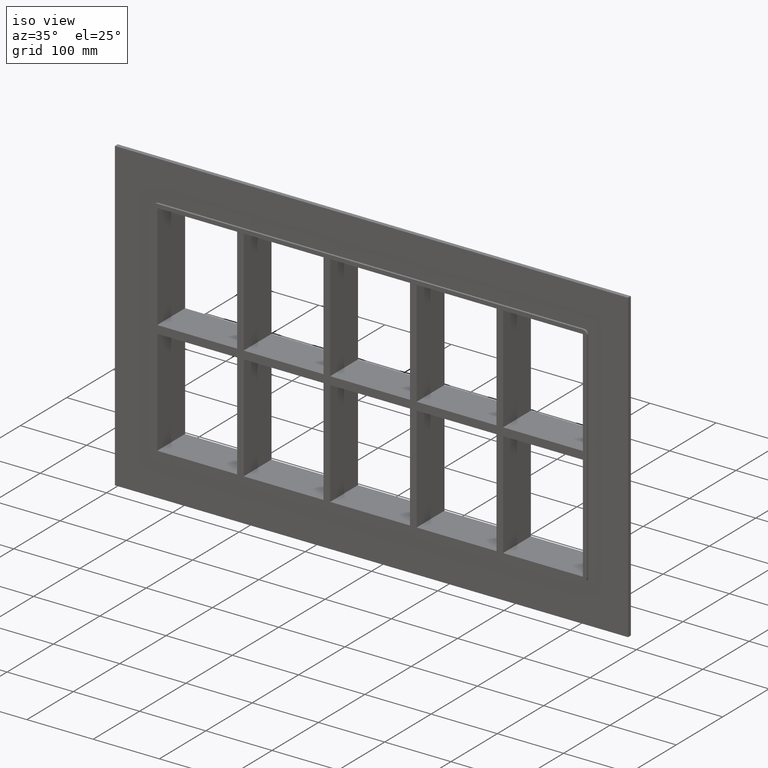
[diagram: clean part render]
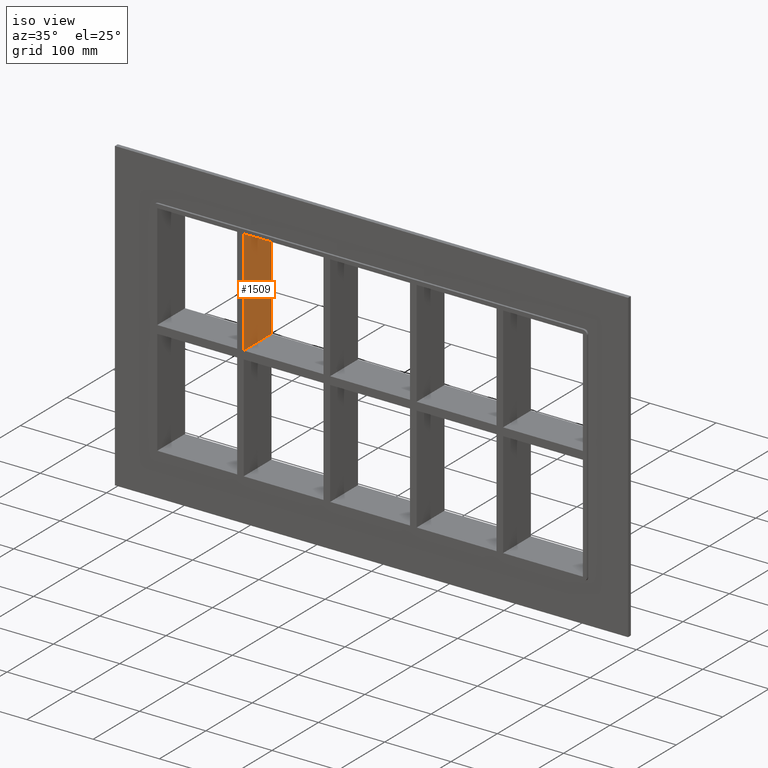
[diagram: same view with one face highlighted and labeled with its STEP entity id]
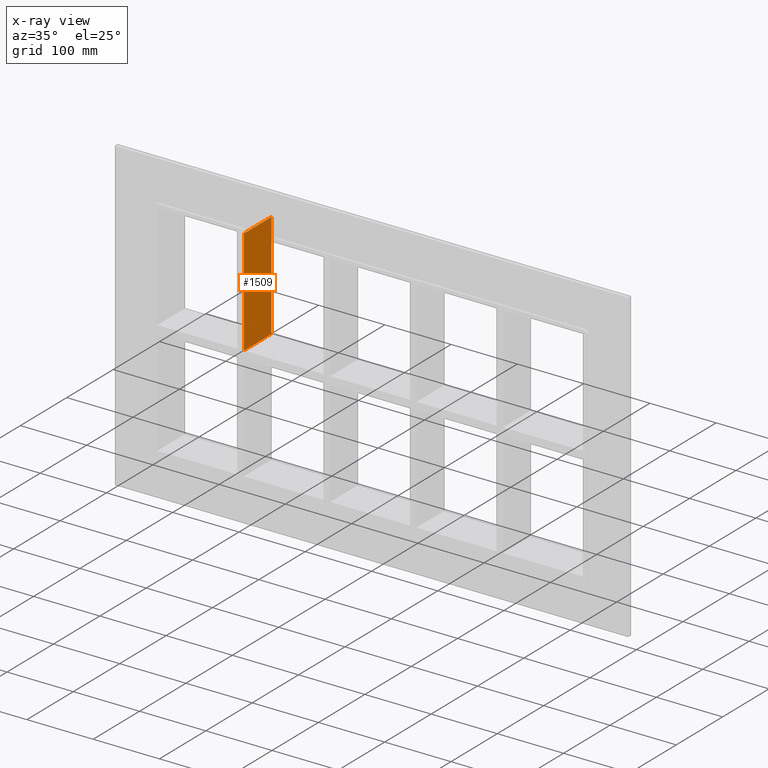
[diagram: x-ray of the same camera — body ghosted, the highlighted face saturated]
A machine part, iso view. The second image highlights one B-rep face of the part: STEP entity #1509.
The next image is the same camera in x-ray: the body ghosted, the highlighted face saturated — about 0% of this face is hidden behind the body in this view.
In plain terms, the highlighted planar face has unit normal (1, 0, 0).
Its self-contained STEP definition (entity closure, byte-faithful):
#801=CARTESIAN_POINT('',(-190.75000000000728,-3.0,5.999999999999943));
#802=VERTEX_POINT('',#801);
#809=CARTESIAN_POINT('',(-190.75000000000728,-3.0,165.5));
#810=VERTEX_POINT('',#809);
#811=CARTESIAN_POINT('',(-190.75000000000728,-3.0,165.5));
#812=DIRECTION('',(0.0,0.0,-1.0));
#813=VECTOR('',#812,159.50000000000006);
#814=LINE('',#811,#813);
#815=EDGE_CURVE('',#810,#802,#814,.T.);
#1243=CARTESIAN_POINT('',(-190.75000000000728,57.0,165.5));
#1244=VERTEX_POINT('',#1243);
#1251=CARTESIAN_POINT('',(-190.75000000000728,57.0,5.999999999999943));
#1252=VERTEX_POINT('',#1251);
#1253=CARTESIAN_POINT('',(-190.75000000000728,57.0,165.5));
#1254=DIRECTION('',(0.0,0.0,-1.0));
#1255=VECTOR('',#1254,159.50000000000006);
#1256=LINE('',#1253,#1255);
#1257=EDGE_CURVE('',#1244,#1252,#1256,.T.);
#1275=CARTESIAN_POINT('',(-190.75000000000728,-3.0,5.999999999999943));
#1276=DIRECTION('',(0.0,1.0,0.0));
#1277=VECTOR('',#1276,60.0);
#1278=LINE('',#1275,#1277);
#1279=EDGE_CURVE('',#802,#1252,#1278,.T.);
#1321=CARTESIAN_POINT('',(-190.75000000000728,-3.0,165.5));
#1322=DIRECTION('',(0.0,1.0,0.0));
#1323=VECTOR('',#1322,60.000000000000007);
#1324=LINE('',#1321,#1323);
#1325=EDGE_CURVE('',#810,#1244,#1324,.T.);
#1498=CARTESIAN_POINT('',(-190.75000000000728,-3.0,165.5));
#1499=DIRECTION('',(1.0,0.0,0.0));
#1500=DIRECTION('',(0.0,0.0,-1.0));
#1501=AXIS2_PLACEMENT_3D('',#1498,#1499,#1500);
#1502=PLANE('',#1501);
#1503=ORIENTED_EDGE('',*,*,#1279,.T.);
#1504=ORIENTED_EDGE('',*,*,#1257,.F.);
#1505=ORIENTED_EDGE('',*,*,#1325,.F.);
#1506=ORIENTED_EDGE('',*,*,#815,.T.);
#1507=EDGE_LOOP('',(#1503,#1504,#1505,#1506));
#1508=FACE_OUTER_BOUND('',#1507,.T.);
#1509=ADVANCED_FACE('',(#1508),#1502,.T.);